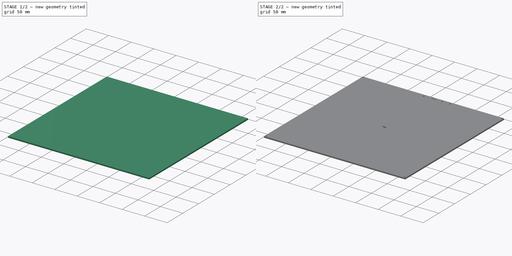
[diagram: build sequence overview — one tinted view per stage of 2, left to right]
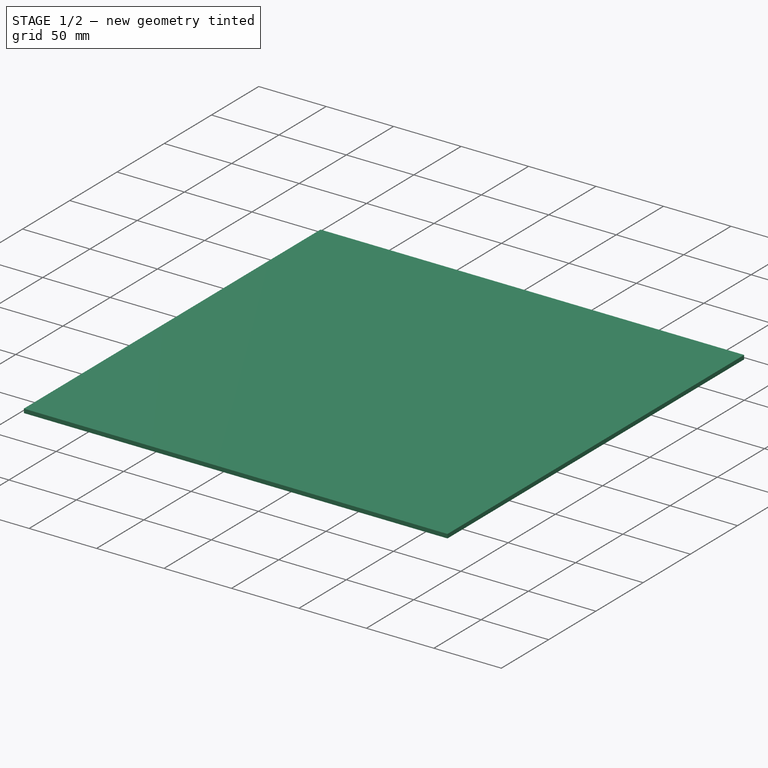
[diagram: stage 1 of 2 — iso view after this stage's code; geometry added in this stage tinted green]
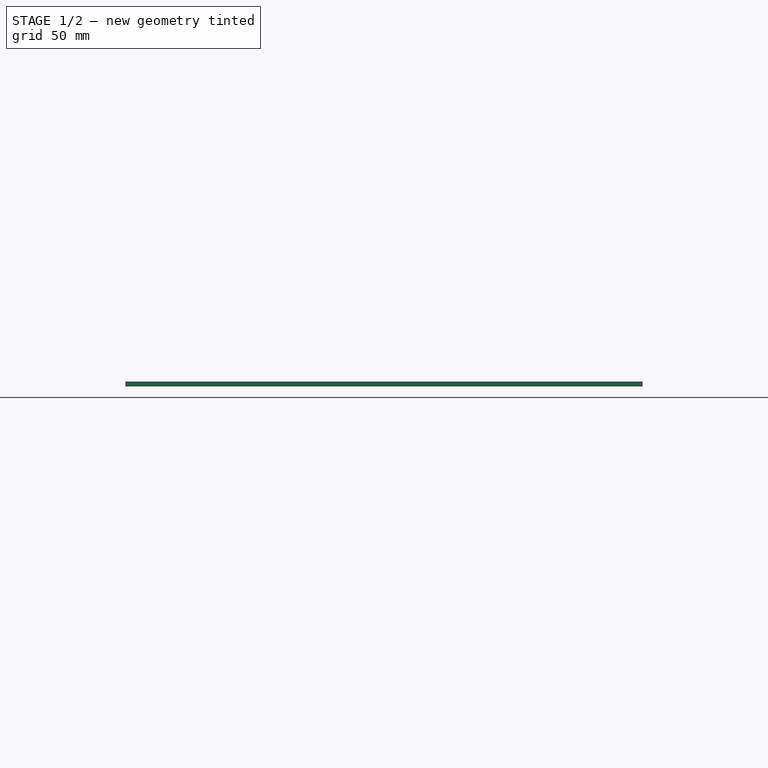
[diagram: stage 1 of 2 — front view after this stage's code; geometry added in this stage tinted green]
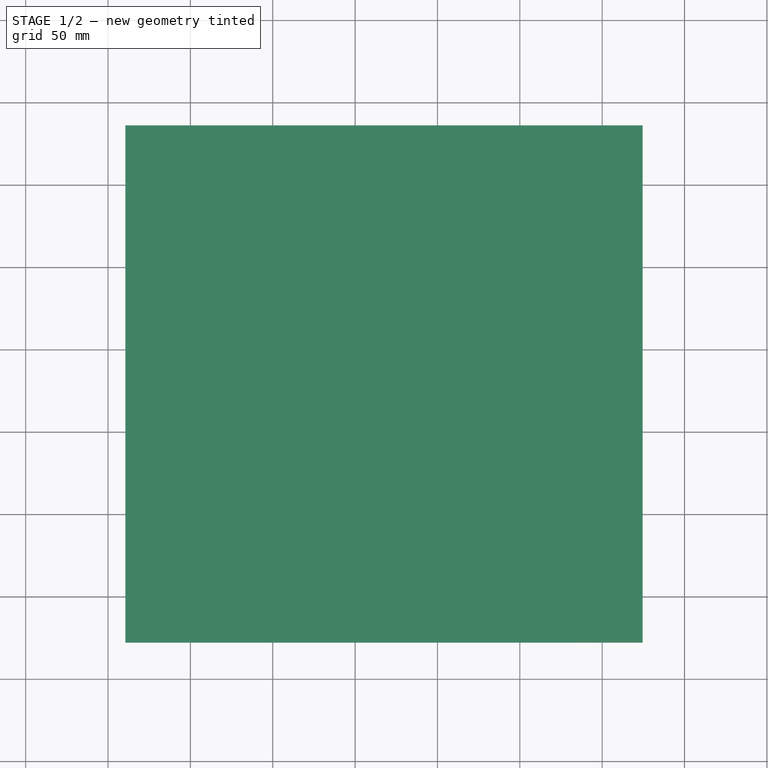
[diagram: stage 1 of 2 — top view after this stage's code; geometry added in this stage tinted green]
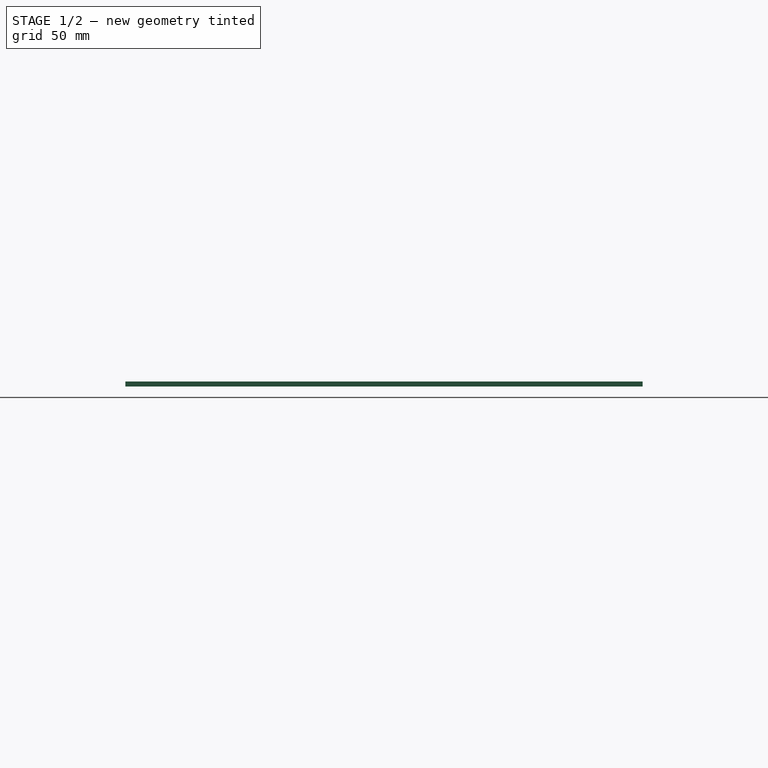
[diagram: stage 1 of 2 — right view after this stage's code; geometry added in this stage tinted green]
FCSTD DOCUMENT  (FreeCAD 0.16R4945 (Git))
Label: MK3-300x300
License: CreativeCommons Attribution-ShareAlike
LicenseURL: http://creativecommons.org/licenses/by-sa/4.0/
objects: Sketcher::SketchObject×3, PartDesign::Pad×2, PartDesign::Pocket×1
note: 9 computed .brp shape members not serialized (recipe doc carries the construction recipe); baked Part::Feature solids carry a one-line shape summary decoded from their .brp

FEATURE [Sketcher::SketchObject] Sketch001  label="Sketch003"
  Placement = pos=(110.544,322.172,403.913) rot=(0,0,-1;1.5708rad)
  sketch-geometry (4):
    g0: LineSegment StartX=-314 StartY=314 StartZ=0 EndX=0 EndY=314 EndZ=0
    g1: LineSegment StartX=0 StartY=314 StartZ=0 EndX=0 EndY=0 EndZ=0
    g2: LineSegment StartX=0 StartY=0 StartZ=0 EndX=-314 EndY=0 EndZ=0
    g3: LineSegment StartX=-314 StartY=0 StartZ=0 EndX=-314 EndY=314 EndZ=0
  constraints (11):
    c: Coincident(g0,g1)
    c: Coincident(g1,g2)
    c: Coincident(g2,g3)
    c: Coincident(g3,g0)
    c: Horizontal(g0)
    c: Horizontal(g2)
    c: Vertical(g1)
    c: Vertical(g3)
    c: Distance(g2) = 314
    c: Distance(g1) = 314
    c: Coincident(g1,g-1)
FEATURE [PartDesign::Pad] Pad
  Length = 3
  Length2 = 100
  Placement = pos=(110.544,322.172,403.913) rot=(0,0,-1;1.5708rad)
  Sketch = -> Sketch001
  Type = 0
FEATURE [Sketcher::SketchObject] Sketch  label="Sketch001"
  ExternalGeometry = -> [Pad]
  Placement = pos=(110.544,322.172,406.913) rot=(0,0,-1;1.5708rad)
  Support = -> Pad [Face6]
  sketch-geometry (25):
    g0: LineSegment StartX=-310 StartY=132.5 StartZ=0 EndX=-306 EndY=132.5 EndZ=0
    g1: LineSegment StartX=-306 StartY=132.5 StartZ=0 EndX=-306 EndY=147.5 EndZ=0
    g2: LineSegment StartX=-306 StartY=147.5 StartZ=0 EndX=-310 EndY=147.5 EndZ=0
    g3: LineSegment StartX=-310 StartY=147.5 StartZ=0 EndX=-310 EndY=132.5 EndZ=0
    g4: LineSegment StartX=-310 StartY=172.5 StartZ=0 EndX=-306 EndY=172.5 EndZ=0
    g5: LineSegment StartX=-306 StartY=172.5 StartZ=0 EndX=-306 EndY=187.5 EndZ=0
    g6: LineSegment StartX=-306 StartY=187.5 StartZ=0 EndX=-310 EndY=187.5 EndZ=0
    g7: LineSegment StartX=-310 StartY=187.5 StartZ=0 EndX=-310 EndY=172.5 EndZ=0
    g8: LineSegment StartX=-310 StartY=190.5 StartZ=0 EndX=-306 EndY=190.5 EndZ=0
    g9: LineSegment StartX=-306 StartY=190.5 StartZ=0 EndX=-306 EndY=205.5 EndZ=0
    g10: LineSegment StartX=-306 StartY=205.5 StartZ=0 EndX=-310 EndY=205.5 EndZ=0
    g11: LineSegment StartX=-310 StartY=205.5 StartZ=0 EndX=-310 EndY=190.5 EndZ=0
    g12: LineSegment [constr] StartX=0 StartY=157 StartZ=0 EndX=-314 EndY=157 EndZ=0
    g13: LineSegment StartX=-311 StartY=164.5 StartZ=0 EndX=-309 EndY=164.5 EndZ=0
    g14: LineSegment StartX=-309 StartY=164.5 StartZ=0 EndX=-309 EndY=160.5 EndZ=0
    g15: LineSegment StartX=-309 StartY=160.5 StartZ=0 EndX=-311 EndY=160.5 EndZ=0
    g16: LineSegment StartX=-311 StartY=160.5 StartZ=0 EndX=-311 EndY=164.5 EndZ=0
    g17: LineSegment StartX=-308 StartY=164.5 StartZ=0 EndX=-306 EndY=164.5 EndZ=0
    g18: LineSegment StartX=-306 StartY=164.5 StartZ=0 EndX=-306 EndY=160.5 EndZ=0
    g19: LineSegment StartX=-306 StartY=160.5 StartZ=0 EndX=-308 EndY=160.5 EndZ=0
    g20: LineSegment StartX=-308 StartY=160.5 StartZ=0 EndX=-308 EndY=164.5 EndZ=0
    g21: LineSegment StartX=-309 StartY=164.51 StartZ=0 EndX=-307 EndY=164.51 EndZ=0
    g22: LineSegment StartX=-307 StartY=164.51 StartZ=0 EndX=-307 EndY=168.51 EndZ=0
    g23: LineSegment StartX=-307 StartY=168.51 StartZ=0 EndX=-309 EndY=168.51 EndZ=0
    g24: LineSegment StartX=-309 StartY=168.51 StartZ=0 EndX=-309 EndY=164.51 EndZ=0
  constraints (75):
    c: Coincident(g0,g1)
    c: Coincident(g1,g2)
    c: Coincident(g2,g3)
    c: Coincident(g3,g0)
    c: Horizontal(g0)
    c: Horizontal(g2)
    c: Vertical(g1)
    c: Vertical(g3)
    c: Coincident(g4,g5)
    c: Coincident(g5,g6)
    c: Coincident(g6,g7)
    c: Coincident(g7,g4)
    c: Horizontal(g4)
    c: Horizontal(g6)
    c: Vertical(g5)
    c: Vertical(g7)
    c: Coincident(g8,g9)
    c: Coincident(g9,g10)
    c: Coincident(g10,g11)
    c: Coincident(g11,g8)
    c: Horizontal(g8)
    c: Horizontal(g10)
    c: Vertical(g9)
    c: Vertical(g11)
    c: Distance(g1) = 15
    c: Distance(g2) = 4
    c: Distance(g5) = 15
    c: Distance(g9) = 15
    c: Distance(g6) = 4
    c: Distance(g10) = 4
    c: Horizontal(g12)
    c: PointOnObject(g12,g-2)
    c: DistanceY(g12,g8) = 33.5
    c: Coincident(g13,g14)
    c: Coincident(g14,g15)
    c: Coincident(g15,g16)
    c: Coincident(g16,g13)
    c: Horizontal(g13)
    c: Horizontal(g15)
    c: Vertical(g14)
    c: Vertical(g16)
    c: Coincident(g17,g18)
    c: Coincident(g18,g19)
    c: Coincident(g19,g20)
    c: Coincident(g20,g17)
    c: Horizontal(g17)
    c: Horizontal(g19)
    c: Vertical(g18)
    c: Vertical(g20)
    c: Coincident(g21,g22)
    c: Coincident(g22,g23)
    c: Coincident(g23,g24)
    c: Coincident(g24,g21)
    c: Horizontal(g21)
    c: Horizontal(g23)
    c: Vertical(g22)
    c: Vertical(g24)
    c: Distance(g23) = 2
    c: Distance(g13) = 2
    c: Distance(g17) = 2
    c: Distance(g14) = 4
    c: Distance(g18) = 4
    c: Distance(g22) = 4
    c: DistanceX(g17,g13) = -1
    c: Symmetric(g-3,g-3,g12)
    c: DistanceX(g2,g12) = -4
    c: DistanceY(g2,g12) = 9.5
    c: DistanceY(g12,g15) = 3.5
    c: DistanceY(g12,g19) = 3.5
    c: DistanceY(g12,g4) = 15.5
    c: DistanceX(g12,g4) = 4
    c: DistanceX(g12,g8) = 4
    c: DistanceX(g12,g15) = 3
    c: DistanceY(g13,g21) = 0.01
    c: DistanceX(g12,g21) = 5
FEATURE [PartDesign::Pad] Pad001
  Length = 0.3
  Length2 = 100
  Placement = pos=(110.544,322.172,403.913) rot=(0,0,-1;1.5708rad)
  Reversed = true
  Sketch = -> Sketch
  Type = 0
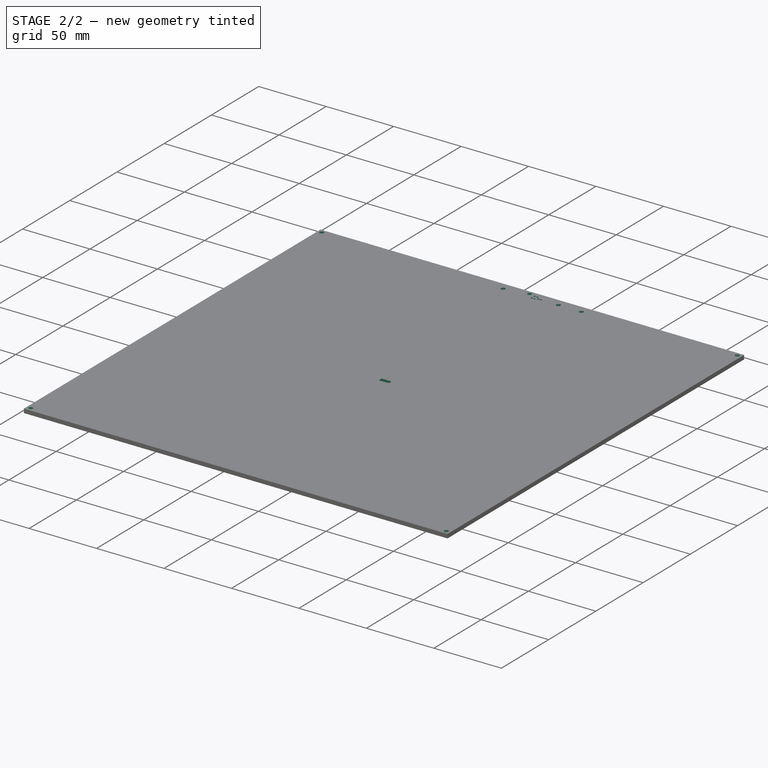
[diagram: stage 2 of 2 — iso view after this stage's code; geometry added in this stage tinted green]
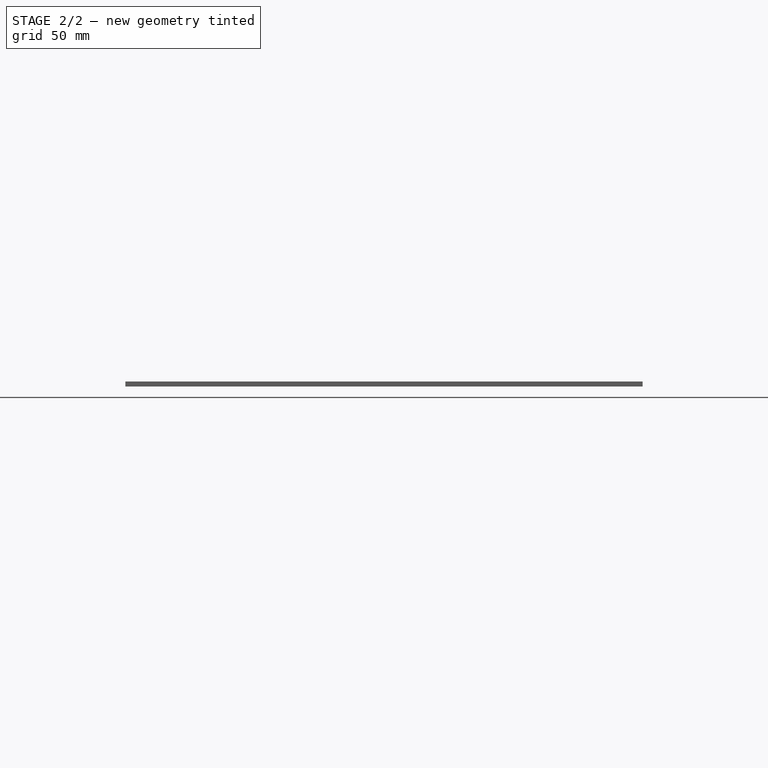
[diagram: stage 2 of 2 — front view after this stage's code; geometry added in this stage tinted green]
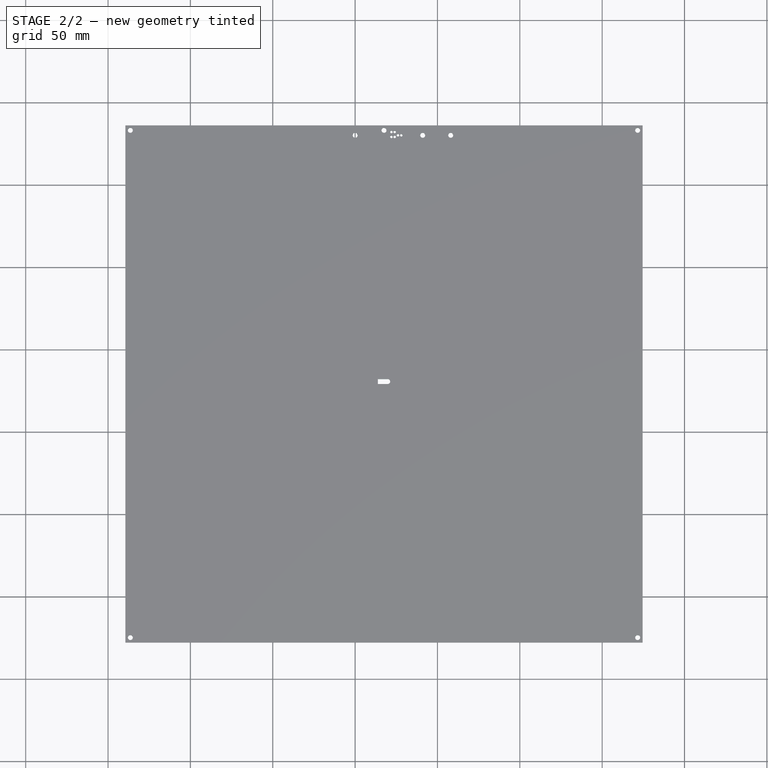
[diagram: stage 2 of 2 — top view after this stage's code; geometry added in this stage tinted green]
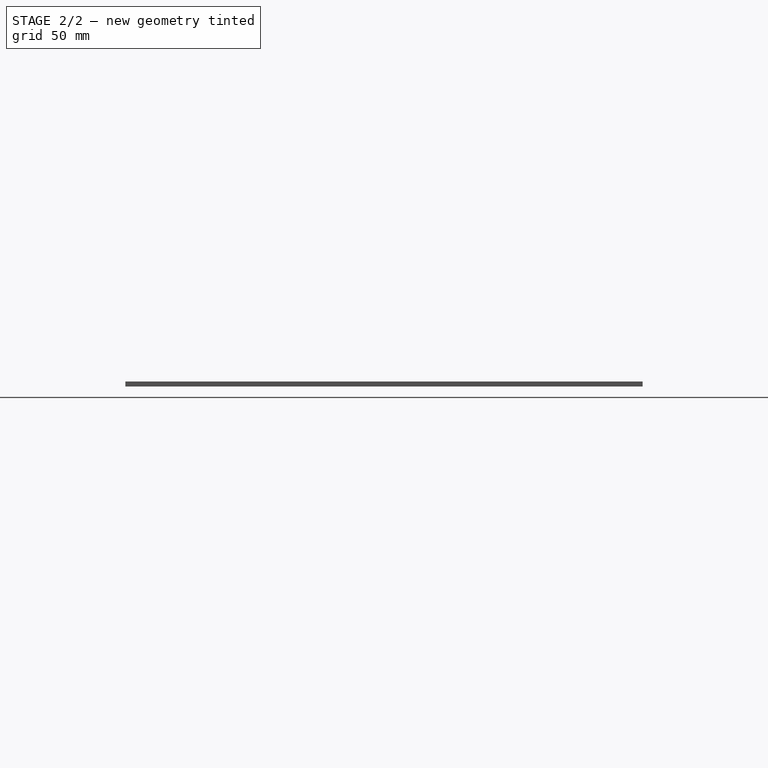
[diagram: stage 2 of 2 — right view after this stage's code; geometry added in this stage tinted green]
FEATURE [Sketcher::SketchObject] Sketch002
  ExternalGeometry = -> [Pad001]
  Placement = pos=(110.544,322.172,406.913) rot=(0,0,-1;1.5708rad)
  Support = -> Pad001 [Face5]
  sketch-geometry (23):
    g0: Circle CenterX=-308 CenterY=139.5 CenterZ=0 NormalX=0 NormalY=0 NormalZ=1 Radius=1.5
    g1: Circle CenterX=-311 CenterY=157 CenterZ=0 NormalX=0 NormalY=0 NormalZ=1 Radius=1.5
    g2: Circle CenterX=-310 CenterY=161.5 CenterZ=0 NormalX=0 NormalY=0 NormalZ=1 Radius=0.75
    g3: Circle CenterX=-310 CenterY=163.5 CenterZ=0 NormalX=0 NormalY=0 NormalZ=1 Radius=0.75
    g4: Circle CenterX=-307 CenterY=161.5 CenterZ=0 NormalX=0 NormalY=0 NormalZ=1 Radius=0.75
    g5: Circle CenterX=-307 CenterY=163.5 CenterZ=0 NormalX=0 NormalY=0 NormalZ=1 Radius=0.75
    g6: Circle CenterX=-308 CenterY=167.5 CenterZ=0 NormalX=0 NormalY=0 NormalZ=1 Radius=0.75
    g7: Circle CenterX=-308 CenterY=165.5 CenterZ=0 NormalX=0 NormalY=0 NormalZ=1 Radius=0.75
    g8: Circle CenterX=-308 CenterY=180.5 CenterZ=0 NormalX=0 NormalY=0 NormalZ=1 Radius=1.5
    g9: Circle CenterX=-308 CenterY=197.5 CenterZ=0 NormalX=0 NormalY=0 NormalZ=1 Radius=1.5
    g10: Circle CenterX=-311 CenterY=311 CenterZ=0 NormalX=0 NormalY=0 NormalZ=1 Radius=1.5
    g11: Circle CenterX=-311 CenterY=3 CenterZ=0 NormalX=0 NormalY=0 NormalZ=1 Radius=1.5
    g12: Circle CenterX=-3 CenterY=3 CenterZ=0 NormalX=0 NormalY=0 NormalZ=1 Radius=1.5
    g13: Circle CenterX=-3 CenterY=311 CenterZ=0 NormalX=0 NormalY=0 NormalZ=1 Radius=1.5
    g14: LineSegment StartX=-157 StartY=159.25 StartZ=0 EndX=-157 EndY=153.25 EndZ=0
    g15: LineSegment StartX=-160 StartY=159.25 StartZ=0 EndX=-160 EndY=153.25 EndZ=0
    g16: LineSegment [constr] StartX=-308 StartY=139.5 StartZ=0 EndX=-308 EndY=197.5 EndZ=0
    g17: LineSegment [constr] StartX=-311 StartY=3 StartZ=0 EndX=-311 EndY=311 EndZ=0
    g18: LineSegment [constr] StartX=-3 StartY=3 StartZ=0 EndX=-3 EndY=311 EndZ=0
    g19: LineSegment StartX=-157 StartY=153.25 StartZ=0 EndX=-160 EndY=153.25 EndZ=0
    g20: LineSegment [constr] StartX=-310 StartY=161.5 StartZ=0 EndX=-310 EndY=163.5 EndZ=0
    g21: LineSegment [constr] StartX=-307 StartY=161.5 StartZ=0 EndX=-307 EndY=163.5 EndZ=0
    g22: ArcOfCircle CenterX=-158.5 CenterY=159.25 CenterZ=0 NormalX=0 NormalY=0 NormalZ=1 Radius=1.5 StartAngle=6.28318 EndAngle=9.42478
  constraints (65):
    c: Vertical(g14)
    c: Radius(g0) = 1.5
    c: Coincident(g16,g0)
    c: Coincident(g16,g9)
    c: Vertical(g16)
    c: PointOnObject(g8,g16)
    c: Radius(g8) = 1.5
    c: Radius(g9) = 1.5
    c: Radius(g1) = 1.5
    c: Radius(g11) = 1.5
    c: Radius(g10) = 1.5
    c: Coincident(g17,g11)
    c: Coincident(g17,g10)
    c: Vertical(g17)
    c: PointOnObject(g1,g17)
    c: Radius(g12) = 1.5
    c: Radius(g13) = 1.5
    c: Coincident(g18,g12)
    c: Coincident(g18,g13)
    c: Vertical(g18)
    c: Distance(g15) = 6
    c: Vertical(g15)
    c: Radius(g7) = 0.75
    c: Coincident(g19,g14)
    c: Coincident(g19,g15)
    c: Horizontal(g19)
    c: Radius(g4) = 0.75
    c: Radius(g5) = 0.75
    c: Radius(g2) = 0.75
    c: Radius(g3) = 0.75
    c: Radius(g6) = 0.75
    c: DistanceX(g11,g-3) = -3
    c: DistanceY(g11,g-3) = -3
    c: DistanceY(g10,g-3) = 3
    c: DistanceY(g1,g-3) = -157
    c: DistanceY(g0,g1) = 17.5
    c: DistanceY(g8,g1) = -23.5
    c: DistanceY(g9,g1) = -40.5
    c: DistanceX(g0,g-3) = -6
    c: DistanceX(g-1,g12) = -3
    c: DistanceY(g-1,g12) = 3
    c: DistanceY(g-4,g13) = -3
    c: DistanceX(g14,g-3) = -157
    c: DistanceY(g14,g-3) = -153.25
    c: Coincident(g20,g3)
    c: Vertical(g20)
    c: Coincident(g21,g4)
    c: Vertical(g21)
    c: Coincident(g5,g21)
    c: PointOnObject(g7,g16)
    c: PointOnObject(g6,g16)
    c: DistanceY(g7,g6) = 2
    c: Coincident(g2,g20)
    c: DistanceY(g2,g3) = 2
    c: DistanceY(g4,g5) = 2
    c: DistanceY(g1,g4) = 4.5
    c: DistanceY(g1,g2) = 4.5
    c: DistanceY(g1,g7) = 8.5
    c: DistanceX(g2,g-3) = -4
    c: DistanceX(g2,g4) = 3
    c: Coincident(g22,g15)
    c: Coincident(g22,g14)
    c: Tangent(g22,g15)
    c: Tangent(g22,g14)
    c: Radius(g22) = 1.5
FEATURE [PartDesign::Pocket] Pocket
  Length = 5
  Midplane = true
  Placement = pos=(110.544,322.172,403.913) rot=(0,0,-1;1.5708rad)
  Sketch = -> Sketch002
  Type = 1
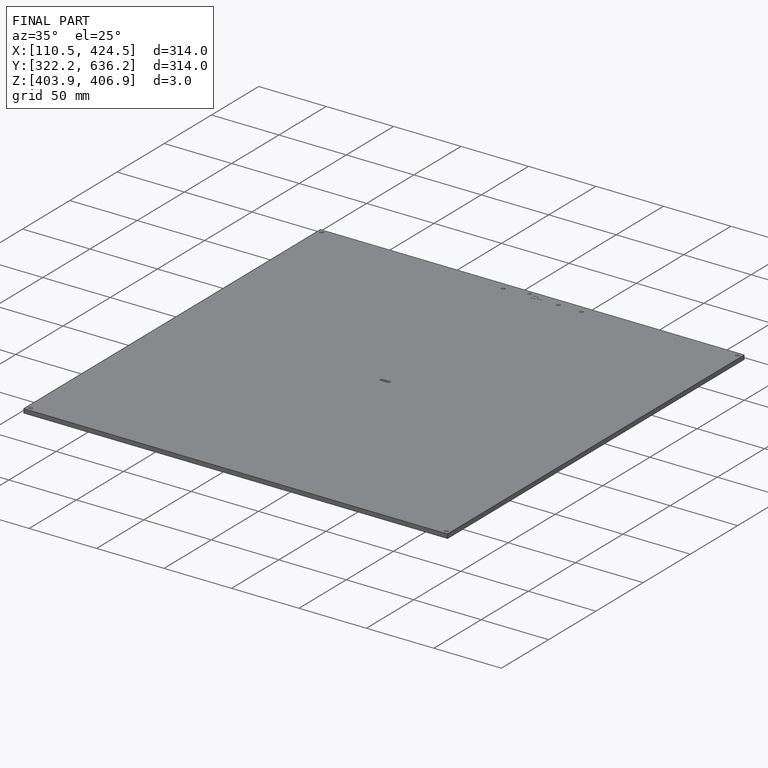
[diagram: finished part — iso view with bounding-box wireframe]
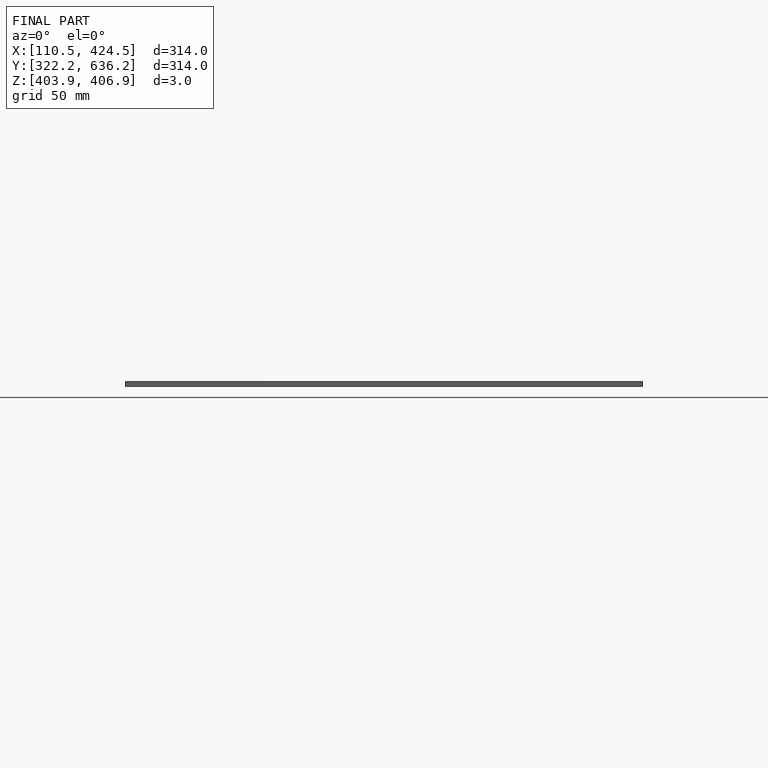
[diagram: finished part — front view with bounding-box wireframe]
